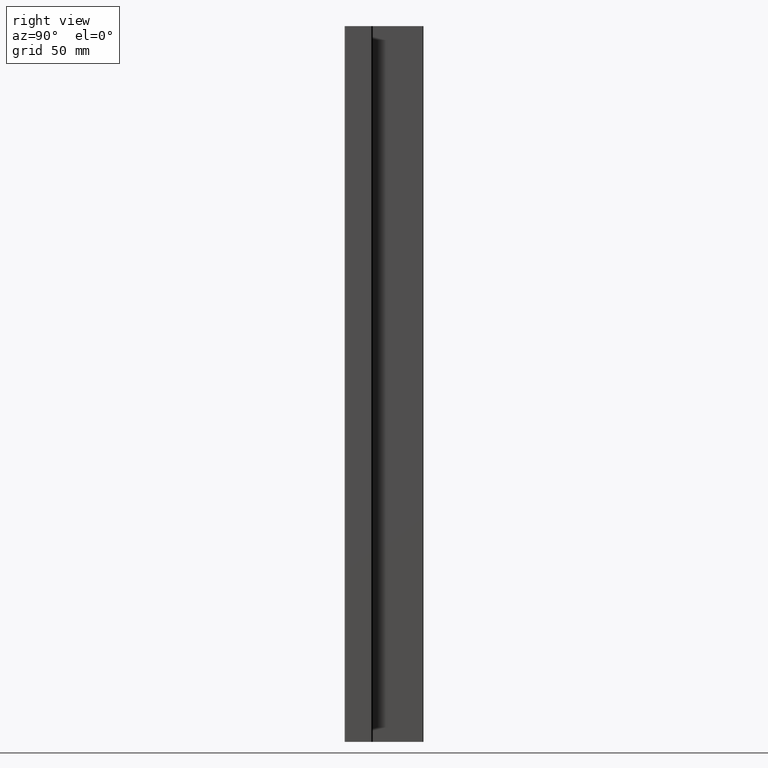
[diagram: clean part render]
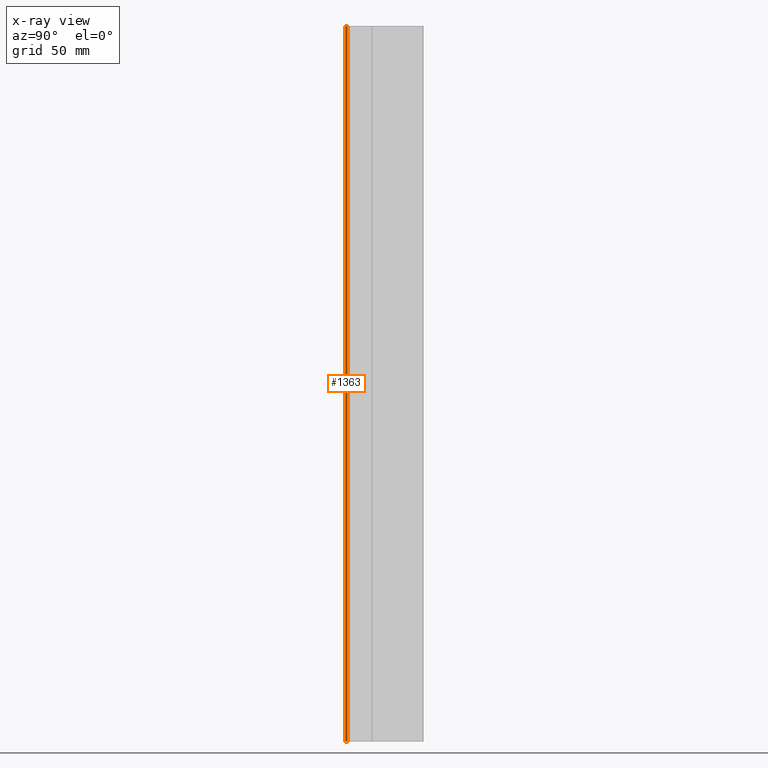
[diagram: x-ray — body ghosted, one internal face saturated and labeled with its STEP entity id]
A machine part, right view, then the same camera in x-ray: the body is ghosted and one INTERNAL B-rep face — a face not visible from any outside direction — is saturated and labeled: STEP entity #1363.
In plain terms, the highlighted cylindrical surface (edge-blend (fillet) strip) has radius 0.8 mm, axis along (-0, -0, -1).
Its self-contained STEP definition (entity closure, byte-faithful):
#4 = AXIS2_PLACEMENT_3D ( 'NONE', #1460, #150, #642 ) ;
#17 = VECTOR ( 'NONE', #935, 1000.000000000000000 ) ;
#115 = LINE ( 'NONE', #1028, #1087 ) ;
#150 = DIRECTION ( 'NONE',  ( 0.0000000000000000000, 0.0000000000000000000, 1.000000000000000000 ) ) ;
#234 = CYLINDRICAL_SURFACE ( 'NONE', #1766, 0.7999999999999986000 ) ;
#414 = FACE_OUTER_BOUND ( 'NONE', #1144, .T. ) ;
#446 = ORIENTED_EDGE ( 'NONE', *, *, #728, .T. ) ;
#642 = DIRECTION ( 'NONE',  ( 1.000000000000000000, 0.0000000000000000000, 0.0000000000000000000 ) ) ;
#656 = CIRCLE ( 'NONE', #4, 0.7999999999999986000 ) ;
#728 = EDGE_CURVE ( 'NONE', #1386, #1712, #656, .T. ) ;
#819 = CARTESIAN_POINT ( 'NONE',  ( -24.22570238034338500, -16.11279836191450700, 150.0000000000000000 ) ) ;
#846 = CARTESIAN_POINT ( 'NONE',  ( -24.22570238034338500, -16.11279836191450700, -150.0000000000000000 ) ) ;
#935 = DIRECTION ( 'NONE',  ( -0.0000000000000000000, -0.0000000000000000000, -1.000000000000000000 ) ) ;
#966 = CARTESIAN_POINT ( 'NONE',  ( -25.01290401842888800, -15.31290074225789900, 150.0000000000000000 ) ) ;
#971 = ORIENTED_EDGE ( 'NONE', *, *, #1659, .T. ) ;
#1002 = ORIENTED_EDGE ( 'NONE', *, *, #1611, .F. ) ;
#1003 = DIRECTION ( 'NONE',  ( -0.0000000000000000000, -0.0000000000000000000, -1.000000000000000000 ) ) ;
#1028 = CARTESIAN_POINT ( 'NONE',  ( -24.22570238034338500, -16.11279836191450700, 150.0000000000000000 ) ) ;
#1087 = VECTOR ( 'NONE', #1003, 1000.000000000000000 ) ;
#1114 = CARTESIAN_POINT ( 'NONE',  ( -25.01290401842888800, -15.31290074225789900, 150.0000000000000000 ) ) ;
#1138 = EDGE_CURVE ( 'NONE', #1496, #1759, #1479, .T. ) ;
#1144 = EDGE_LOOP ( 'NONE', ( #1482, #971, #446, #1002 ) ) ;
#1208 = CARTESIAN_POINT ( 'NONE',  ( -25.01290401842888800, -15.31290074225789900, -150.0000000000000000 ) ) ;
#1244 = DIRECTION ( 'NONE',  ( -0.0000000000000000000, -0.0000000000000000000, -1.000000000000000000 ) ) ;
#1266 = CARTESIAN_POINT ( 'NONE',  ( -24.21290401842888700, -15.31290074225789900, 150.0000000000000000 ) ) ;
#1278 = DIRECTION ( 'NONE',  ( -1.000000000000000000, 0.0000000000000000000, 0.0000000000000000000 ) ) ;
#1363 = ADVANCED_FACE ( 'NONE', ( #414 ), #234, .T. ) ;
#1386 = VERTEX_POINT ( 'NONE', #1208 ) ;
#1460 = CARTESIAN_POINT ( 'NONE',  ( -24.21290401842888700, -15.31290074225789900, -150.0000000000000000 ) ) ;
#1479 = CIRCLE ( 'NONE', #1870, 0.7999999999999986000 ) ;
#1482 = ORIENTED_EDGE ( 'NONE', *, *, #1138, .F. ) ;
#1496 = VERTEX_POINT ( 'NONE', #1114 ) ;
#1535 = DIRECTION ( 'NONE',  ( 1.000000000000000000, 0.0000000000000000000, 0.0000000000000000000 ) ) ;
#1539 = DIRECTION ( 'NONE',  ( 0.0000000000000000000, 0.0000000000000000000, 1.000000000000000000 ) ) ;
#1542 = CARTESIAN_POINT ( 'NONE',  ( -24.21290401842888700, -15.31290074225789900, 150.0000000000000000 ) ) ;
#1611 = EDGE_CURVE ( 'NONE', #1759, #1712, #115, .T. ) ;
#1659 = EDGE_CURVE ( 'NONE', #1496, #1386, #1745, .T. ) ;
#1712 = VERTEX_POINT ( 'NONE', #846 ) ;
#1745 = LINE ( 'NONE', #966, #17 ) ;
#1759 = VERTEX_POINT ( 'NONE', #819 ) ;
#1766 = AXIS2_PLACEMENT_3D ( 'NONE', #1266, #1244, #1278 ) ;
#1870 = AXIS2_PLACEMENT_3D ( 'NONE', #1542, #1539, #1535 ) ;